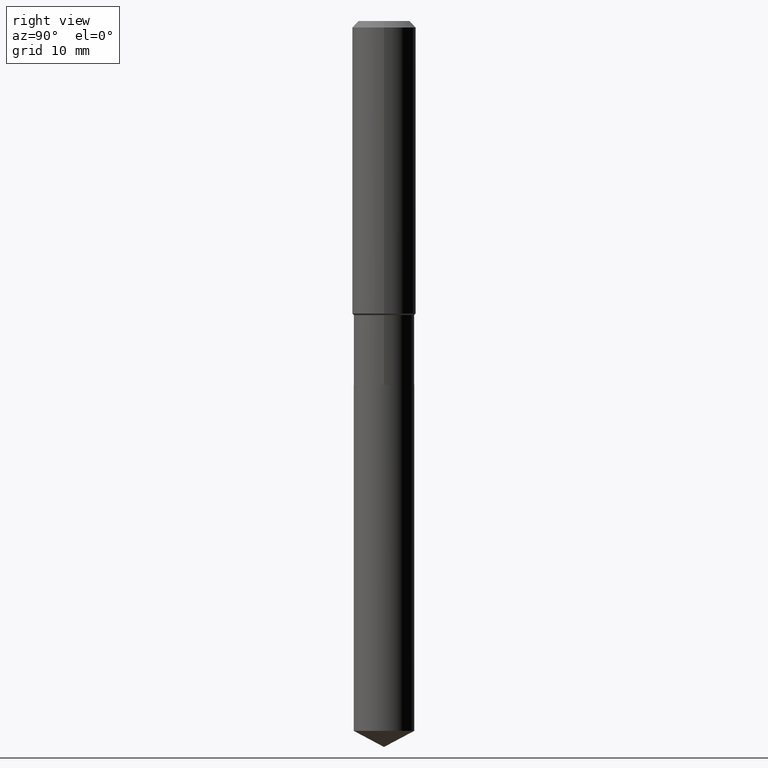
[diagram: clean part render]
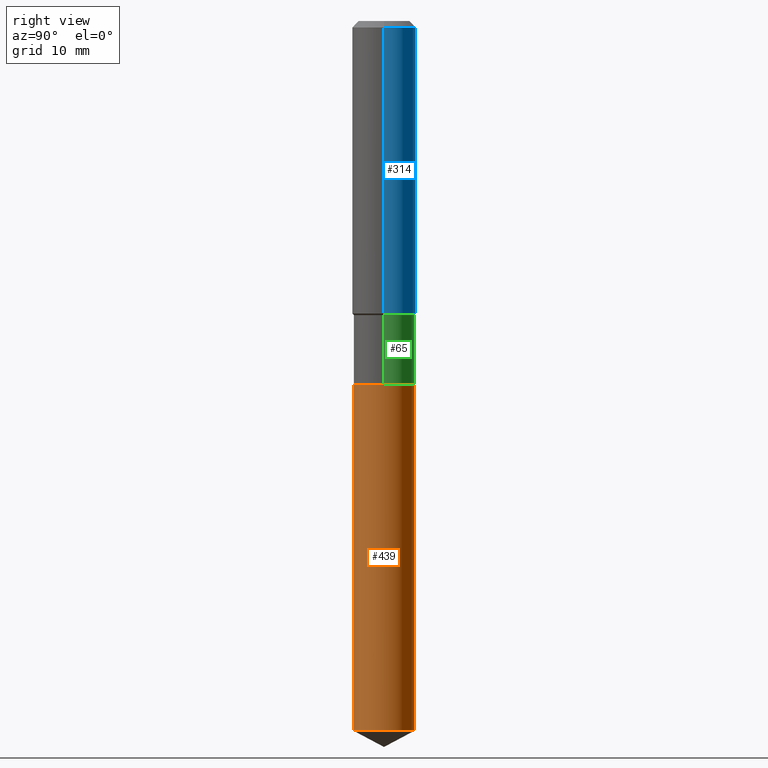
[diagram: same view with three faces highlighted in distinct colors, each labeled with its STEP entity id]
A machine part, right view with three faces highlighted in distinct colors.
Their STEP definitions:

[orange] entity #439 — the highlighted cylindrical surface (edge-blend (fillet) strip) has radius 3.7998 mm, axis along (-0, 0, 1).
#54 = CIRCLE ( 'NONE', #230, 0.1496000000000000107 ) ;
#66 = CIRCLE ( 'NONE', #459, 0.1496000000000000107 ) ;
#80 = CARTESIAN_POINT ( 'NONE',  ( -1.044651216581821622E-15, -0.1496000000000062835, -1.795299999999999452 ) ) ;
#85 = CARTESIAN_POINT ( 'NONE',  ( -1.044651216581780009E-15, -0.1496000000000122510, -3.503156269023442793 ) ) ;
#89 = DIRECTION ( 'NONE',  ( -2.445434716319328543E-29, 3.491530157471257192E-15, 1.000000000000000000 ) ) ;
#91 = ORIENTED_EDGE ( 'NONE', *, *, #453, .T. ) ;
#100 = CARTESIAN_POINT ( 'NONE',  ( 1.062971932697195546E-15, 0.1495999999999878260, -3.503156269023444125 ) ) ;
#105 = VECTOR ( 'NONE', #89, 39.37007874015748143 ) ;
#114 = CYLINDRICAL_SURFACE ( 'NONE', #280, 0.1496000000000000107 ) ;
#119 = VERTEX_POINT ( 'NONE', #245 ) ;
#129 = EDGE_LOOP ( 'NONE', ( #91, #464, #139, #473 ) ) ;
#139 = ORIENTED_EDGE ( 'NONE', *, *, #458, .F. ) ;
#153 = FACE_OUTER_BOUND ( 'NONE', #129, .T. ) ;
#156 = VERTEX_POINT ( 'NONE', #388 ) ;
#165 = DIRECTION ( 'NONE',  ( -6.982962677686265922E-15, -1.000000000000000000, 3.652203200085913145E-15 ) ) ;
#178 = CARTESIAN_POINT ( 'NONE',  ( 1.062971932697153933E-15, 0.1495999999999937657, -1.795300000000000562 ) ) ;
#230 = AXIS2_PLACEMENT_3D ( 'NONE', #301, #483, #165 ) ;
#245 = CARTESIAN_POINT ( 'NONE',  ( 1.062971932697195743E-15, 0.1495999999999937102, -1.795300000000000562 ) ) ;
#253 = VERTEX_POINT ( 'NONE', #85 ) ;
#266 = EDGE_CURVE ( 'NONE', #253, #156, #406, .T. ) ;
#279 = EDGE_CURVE ( 'NONE', #323, #119, #471, .T. ) ;
#280 = AXIS2_PLACEMENT_3D ( 'NONE', #485, #403, #447 ) ;
#301 = CARTESIAN_POINT ( 'NONE',  ( 4.390350147744175670E-29, -6.268256447625099205E-15, -1.795300000000000118 ) ) ;
#320 = VECTOR ( 'NONE', #482, 39.37007874015748143 ) ;
#323 = VERTEX_POINT ( 'NONE', #100 ) ;
#372 = DIRECTION ( 'NONE',  ( -2.445434716319328543E-29, 3.491530157471257586E-15, 1.000000000000000000 ) ) ;
#388 = CARTESIAN_POINT ( 'NONE',  ( -1.044651216581821425E-15, -0.1496000000000062835, -1.795299999999999452 ) ) ;
#403 = DIRECTION ( 'NONE',  ( -2.445434716319328543E-29, 3.491530157471257586E-15, 1.000000000000000000 ) ) ;
#406 = LINE ( 'NONE', #80, #105 ) ;
#413 = CARTESIAN_POINT ( 'NONE',  ( 8.566801158497707259E-29, -1.223128811554679691E-14, -3.503156269023443237 ) ) ;
#439 = ADVANCED_FACE ( 'NONE', ( #153 ), #114, .T. ) ;
#444 = DIRECTION ( 'NONE',  ( -6.982962677686266711E-15, -1.000000000000000000, 3.652203200085913145E-15 ) ) ;
#447 = DIRECTION ( 'NONE',  ( -6.982962677686266711E-15, -1.000000000000000000, 3.652203200085913145E-15 ) ) ;
#453 = EDGE_CURVE ( 'NONE', #253, #323, #66, .T. ) ;
#458 = EDGE_CURVE ( 'NONE', #156, #119, #54, .T. ) ;
#459 = AXIS2_PLACEMENT_3D ( 'NONE', #413, #372, #444 ) ;
#464 = ORIENTED_EDGE ( 'NONE', *, *, #279, .T. ) ;
#471 = LINE ( 'NONE', #178, #320 ) ;
#473 = ORIENTED_EDGE ( 'NONE', *, *, #266, .F. ) ;
#482 = DIRECTION ( 'NONE',  ( -2.445434716319328543E-29, 3.491530157471257192E-15, 1.000000000000000000 ) ) ;
#483 = DIRECTION ( 'NONE',  ( -2.445434716319328543E-29, 3.491530157471257586E-15, 1.000000000000000000 ) ) ;
#485 = CARTESIAN_POINT ( 'NONE',  ( 4.390350147744175670E-29, -6.268256447625099205E-15, -1.795300000000000118 ) ) ;

[blue] entity #314 — the highlighted cylindrical surface (edge-blend (fillet) strip) has radius 4.0005 mm, axis along (-0, 0, 1).
#6 = VECTOR ( 'NONE', #185, 39.37007874015748143 ) ;
#10 = VERTEX_POINT ( 'NONE', #211 ) ;
#14 = CARTESIAN_POINT ( 'NONE',  ( 7.703226739483226971E-31, -1.099816621735597538E-16, -0.03150000000000019451 ) ) ;
#47 = CARTESIAN_POINT ( 'NONE',  ( 0.1575000000000000844, -1.099816621735587677E-15, 7.679978421878603638E-30 ) ) ;
#69 = DIRECTION ( 'NONE',  ( -2.445468806185136597E-29, 3.491481338843145583E-15, 1.000000000000000000 ) ) ;
#81 = LINE ( 'NONE', #47, #145 ) ;
#112 = DIRECTION ( 'NONE',  ( 1.000000000000000000, -6.982962677686267499E-15, 0.000000000000000000 ) ) ;
#113 = AXIS2_PLACEMENT_3D ( 'NONE', #152, #277, #112 ) ;
#120 = CARTESIAN_POINT ( 'NONE',  ( -0.1575000000000000011, -1.455513530440777031E-15, -0.03150000000000019451 ) ) ;
#121 = DIRECTION ( 'NONE',  ( -2.445468806185136597E-29, 3.491481338843145583E-15, 1.000000000000000000 ) ) ;
#126 = EDGE_LOOP ( 'NONE', ( #255, #371, #207, #438 ) ) ;
#136 = CIRCLE ( 'NONE', #113, 0.1575000000000001676 ) ;
#145 = VECTOR ( 'NONE', #204, 39.37007874015748143 ) ;
#148 = CARTESIAN_POINT ( 'NONE',  ( -0.1575000000000000844, 1.119104808822158392E-15, -7.747322767151481189E-30 ) ) ;
#151 = FACE_OUTER_BOUND ( 'NONE', #126, .T. ) ;
#152 = CARTESIAN_POINT ( 'NONE',  ( 3.529545127967007664E-29, -5.039255016352311783E-15, -1.443299999999999805 ) ) ;
#163 = AXIS2_PLACEMENT_3D ( 'NONE', #463, #121, #446 ) ;
#169 = VERTEX_POINT ( 'NONE', #120 ) ;
#182 = CIRCLE ( 'NONE', #224, 0.1575000000000000011 ) ;
#185 = DIRECTION ( 'NONE',  ( -2.445468806185136877E-29, 3.491481338843145188E-15, 1.000000000000000000 ) ) ;
#187 = EDGE_CURVE ( 'NONE', #10, #296, #136, .T. ) ;
#204 = DIRECTION ( 'NONE',  ( -2.445468806185136877E-29, 3.491481338843145188E-15, 1.000000000000000000 ) ) ;
#207 = ORIENTED_EDGE ( 'NONE', *, *, #304, .F. ) ;
#211 = CARTESIAN_POINT ( 'NONE',  ( 0.1575000000000001676, -6.139071638087900053E-15, -1.443299999999999805 ) ) ;
#217 = EDGE_CURVE ( 'NONE', #10, #338, #81, .T. ) ;
#224 = AXIS2_PLACEMENT_3D ( 'NONE', #14, #69, #236 ) ;
#236 = DIRECTION ( 'NONE',  ( 1.000000000000000000, -6.982962677686265922E-15, 0.000000000000000000 ) ) ;
#255 = ORIENTED_EDGE ( 'NONE', *, *, #187, .T. ) ;
#277 = DIRECTION ( 'NONE',  ( -2.445468806185136597E-29, 3.491481338843145583E-15, 1.000000000000000000 ) ) ;
#296 = VERTEX_POINT ( 'NONE', #416 ) ;
#304 = EDGE_CURVE ( 'NONE', #338, #169, #182, .T. ) ;
#314 = ADVANCED_FACE ( 'NONE', ( #151 ), #429, .T. ) ;
#338 = VERTEX_POINT ( 'NONE', #427 ) ;
#363 = EDGE_CURVE ( 'NONE', #296, #169, #379, .T. ) ;
#371 = ORIENTED_EDGE ( 'NONE', *, *, #363, .T. ) ;
#379 = LINE ( 'NONE', #148, #6 ) ;
#416 = CARTESIAN_POINT ( 'NONE',  ( -0.1575000000000001676, -3.920150207530152602E-15, -1.443299999999999805 ) ) ;
#427 = CARTESIAN_POINT ( 'NONE',  ( 0.1575000000000000011, -1.209798283909146741E-15, -0.03150000000000019451 ) ) ;
#429 = CYLINDRICAL_SURFACE ( 'NONE', #163, 0.1575000000000000844 ) ;
#438 = ORIENTED_EDGE ( 'NONE', *, *, #217, .F. ) ;
#446 = DIRECTION ( 'NONE',  ( 1.000000000000000000, -6.982962677686267499E-15, 4.876176775795936353E-29 ) ) ;
#463 = CARTESIAN_POINT ( 'NONE',  ( 0.000000000000000000, 0.000000000000000000, 0.000000000000000000 ) ) ;

[green] entity #65 — the highlighted cylindrical surface (edge-blend (fillet) strip) has radius 3.7998 mm, axis along (-0, 0, 1).
#1 = EDGE_CURVE ( 'NONE', #374, #392, #385, .T. ) ;
#12 = VERTEX_POINT ( 'NONE', #420 ) ;
#19 = FACE_OUTER_BOUND ( 'NONE', #408, .T. ) ;
#33 = DIRECTION ( 'NONE',  ( 1.000000000000000000, -6.982962677686262766E-15, 0.000000000000000000 ) ) ;
#43 = VECTOR ( 'NONE', #423, 39.37007874015748143 ) ;
#48 = ORIENTED_EDGE ( 'NONE', *, *, #168, .T. ) ;
#50 = CARTESIAN_POINT ( 'NONE',  ( 4.389127413341083429E-29, -6.266510706955677702E-15, -1.794800000000000173 ) ) ;
#65 = ADVANCED_FACE ( 'NONE', ( #19 ), #305, .T. ) ;
#67 = AXIS2_PLACEMENT_3D ( 'NONE', #50, #254, #291 ) ;
#75 = DIRECTION ( 'NONE',  ( -2.445468806185136597E-29, 3.491481338843145583E-15, 1.000000000000000000 ) ) ;
#101 = DIRECTION ( 'NONE',  ( 1.000000000000000000, -6.982962677686266711E-15, 4.876176775795936353E-29 ) ) ;
#111 = EDGE_CURVE ( 'NONE', #369, #12, #356, .T. ) ;
#130 = ORIENTED_EDGE ( 'NONE', *, *, #1, .F. ) ;
#146 = CARTESIAN_POINT ( 'NONE',  ( 0.000000000000000000, 0.000000000000000000, 0.000000000000000000 ) ) ;
#167 = DIRECTION ( 'NONE',  ( -2.445468806185136877E-29, 3.491481338843145188E-15, 1.000000000000000000 ) ) ;
#168 = EDGE_CURVE ( 'NONE', #12, #392, #282, .T. ) ;
#206 = CARTESIAN_POINT ( 'NONE',  ( 0.1495999999999999830, -1.044651216581865404E-15, 7.294760456590720327E-30 ) ) ;
#228 = CARTESIAN_POINT ( 'NONE',  ( 0.1496000000000000107, -7.311161923537544091E-15, -1.794800000000000173 ) ) ;
#254 = DIRECTION ( 'NONE',  ( -2.445468806185136597E-29, 3.491481338843145583E-15, 1.000000000000000000 ) ) ;
#261 = ORIENTED_EDGE ( 'NONE', *, *, #431, .F. ) ;
#282 = LINE ( 'NONE', #353, #457 ) ;
#291 = DIRECTION ( 'NONE',  ( 1.000000000000000000, -6.982962677686268288E-15, 0.000000000000000000 ) ) ;
#305 = CYLINDRICAL_SURFACE ( 'NONE', #316, 0.1495999999999999830 ) ;
#310 = DIRECTION ( 'NONE',  ( -2.445468806185136597E-29, 3.491481338843145583E-15, 1.000000000000000000 ) ) ;
#316 = AXIS2_PLACEMENT_3D ( 'NONE', #146, #310, #101 ) ;
#348 = CARTESIAN_POINT ( 'NONE',  ( 0.1495999999999999830, -6.111488935511037930E-15, -1.451200000000000045 ) ) ;
#353 = CARTESIAN_POINT ( 'NONE',  ( -0.1495999999999999830, 1.062971932697109757E-15, -7.358726895021338760E-30 ) ) ;
#356 = CIRCLE ( 'NONE', #67, 0.1496000000000000107 ) ;
#358 = CARTESIAN_POINT ( 'NONE',  ( 3.548864331535870340E-29, -5.066837718929173118E-15, -1.451200000000000045 ) ) ;
#368 = ORIENTED_EDGE ( 'NONE', *, *, #111, .T. ) ;
#369 = VERTEX_POINT ( 'NONE', #228 ) ;
#374 = VERTEX_POINT ( 'NONE', #348 ) ;
#385 = CIRCLE ( 'NONE', #470, 0.1495999999999999830 ) ;
#392 = VERTEX_POINT ( 'NONE', #467 ) ;
#405 = LINE ( 'NONE', #206, #43 ) ;
#408 = EDGE_LOOP ( 'NONE', ( #368, #48, #130, #261 ) ) ;
#420 = CARTESIAN_POINT ( 'NONE',  ( -0.1496000000000000107, -4.603702280245315061E-15, -1.794800000000000173 ) ) ;
#423 = DIRECTION ( 'NONE',  ( -2.445468806185136877E-29, 3.491481338843145188E-15, 1.000000000000000000 ) ) ;
#431 = EDGE_CURVE ( 'NONE', #369, #374, #405, .T. ) ;
#457 = VECTOR ( 'NONE', #167, 39.37007874015748143 ) ;
#467 = CARTESIAN_POINT ( 'NONE',  ( -0.1495999999999999830, -4.603702280245315850E-15, -1.451200000000000045 ) ) ;
#470 = AXIS2_PLACEMENT_3D ( 'NONE', #358, #75, #33 ) ;